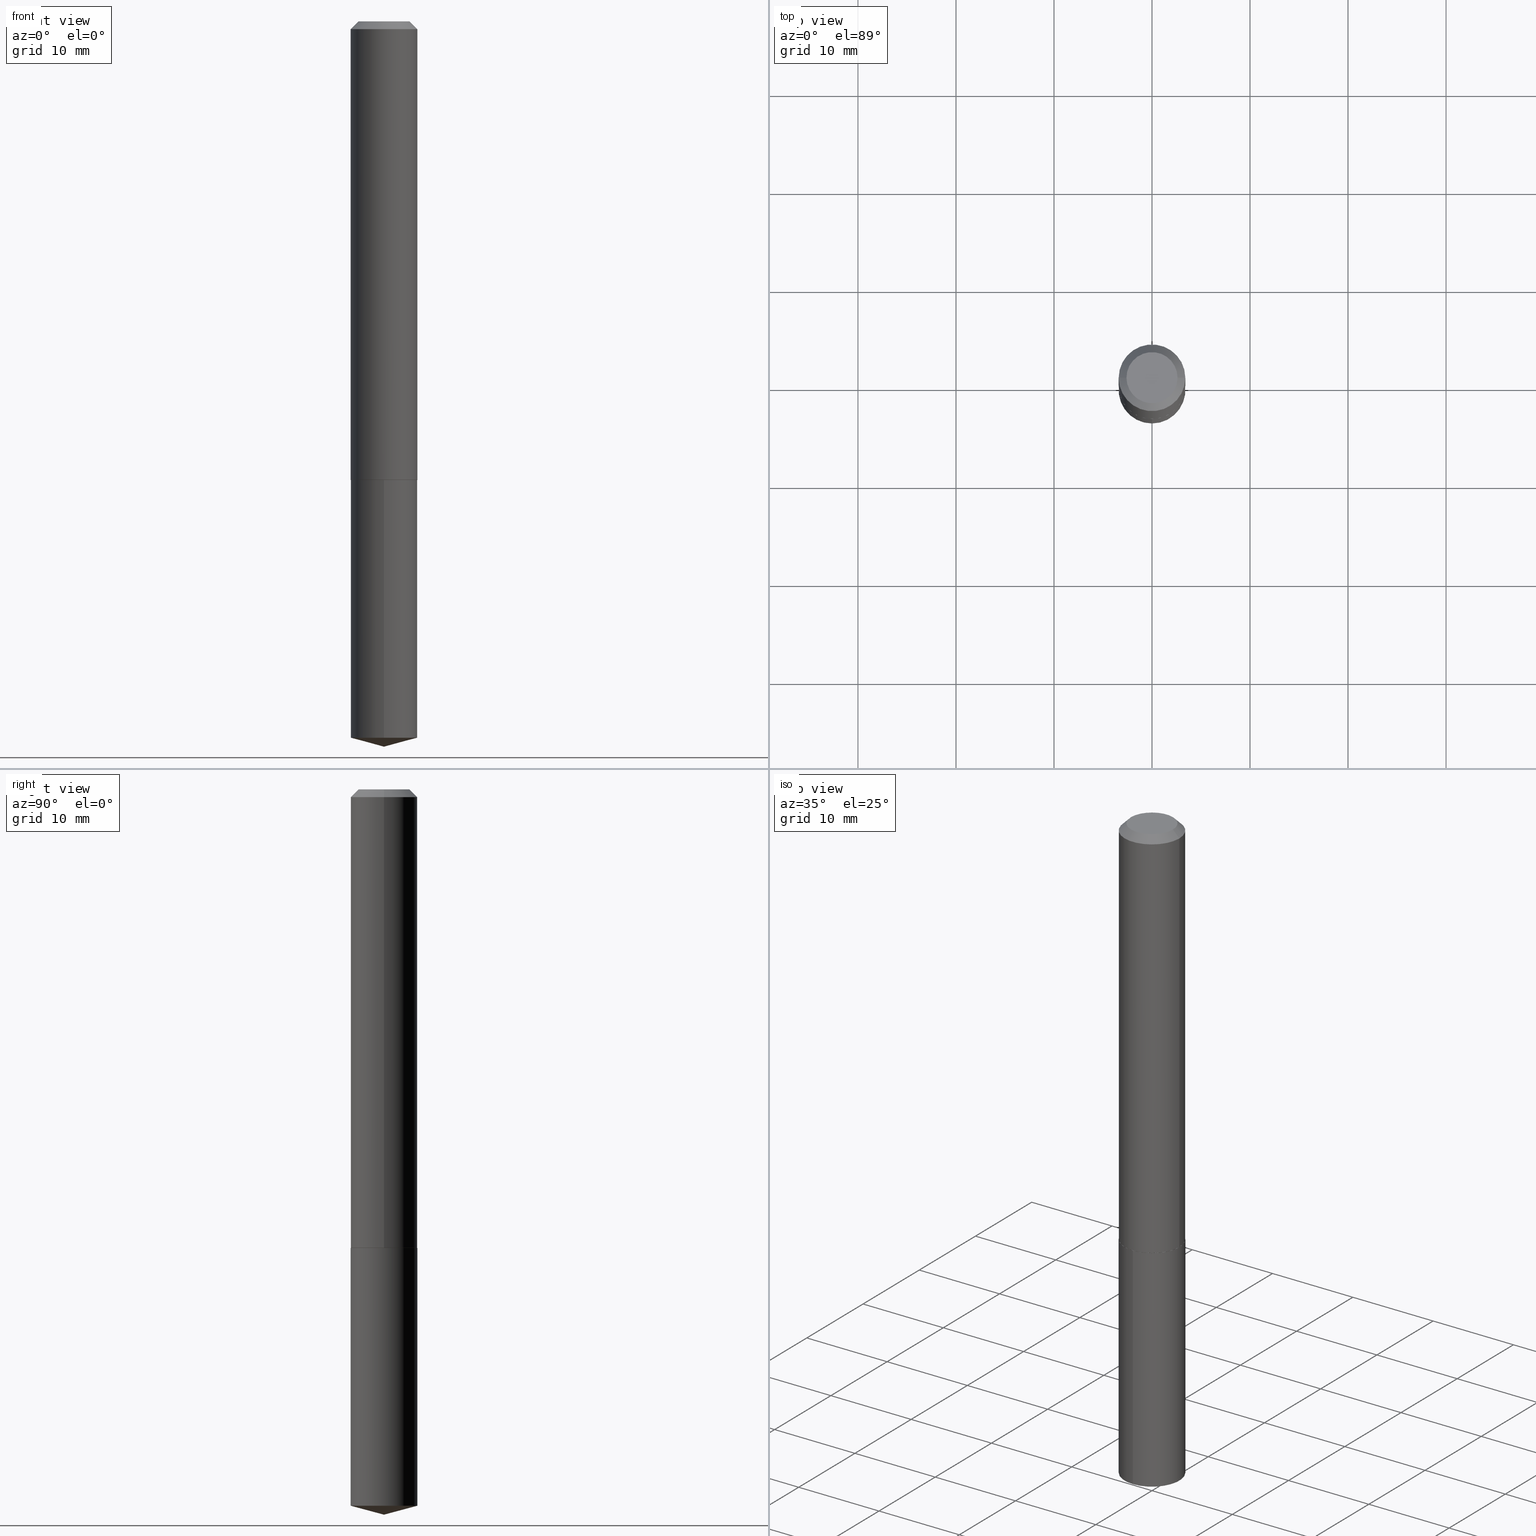
[diagram: canonical four-view strip — front | top / right | iso, engineering-drawing reading convention]
A machine part, canonical four-view strip (front | top / right | iso — engineering-drawing reading convention). The complete STEP part file that produces these views, byte-faithful:
ISO-10303-21;
HEADER;
FILE_DESCRIPTION (( 'STEP AP203' ),
    '1' );
FILE_NAME ('69003.STEP',
    '2024-04-23T14:13:59',
    ( '' ),
    ( '' ),
    'SwSTEP 2.0',
    'SolidWorks 2023',
    '' );
FILE_SCHEMA (( 'CONFIG_CONTROL_DESIGN' ));
ENDSEC;

DATA;
#1 = PRODUCT_DEFINITION ( 'UNKNOWN', '', #275, #266 ) ;
#2 = DIRECTION ( 'NONE',  ( -6.982962677686265133E-15, -1.000000000000000000, 4.081954417130015942E-15 ) ) ;
#3 = FACE_OUTER_BOUND ( 'NONE', #100, .T. ) ;
#4 = PERSON_AND_ORGANIZATION ( #299, #27 ) ;
#5 = VECTOR ( 'NONE', #292, 39.37007874015748143 ) ;
#6 = ORIENTED_EDGE ( 'NONE', *, *, #385, .F. ) ;
#7 = CC_DESIGN_PERSON_AND_ORGANIZATION_ASSIGNMENT ( #200, #46, ( #275 ) ) ;
#8 = CARTESIAN_POINT ( 'NONE',  ( -5.839929314523151101E-48, 8.337871319499049968E-34, 2.388061258337324511E-19 ) ) ;
#9 = VERTEX_POINT ( 'NONE', #143 ) ;
#10 = LENGTH_MEASURE_WITH_UNIT ( LENGTH_MEASURE( 0.02539999999999999897 ), #170 );
#11 = CONICAL_SURFACE ( 'NONE', #314, 146.9311341562547568, 1.308996938995746762 ) ;
#12 = ORIENTED_EDGE ( 'NONE', *, *, #211, .T. ) ;
#13 = EDGE_CURVE ( 'NONE', #368, #15, #123, .T. ) ;
#14 = VERTEX_POINT ( 'NONE', #286 ) ;
#15 = VERTEX_POINT ( 'NONE', #282 ) ;
#16 = CARTESIAN_POINT ( 'NONE',  ( 0.1338500000000002466, -7.365978180557384825E-15, -1.842000000000000526 ) ) ;
#17 = LOCAL_TIME ( 10, 13, 59.00000000000000000, #259 ) ;
#18 = EDGE_CURVE ( 'NONE', #14, #9, #90, .T. ) ;
#19 = CYLINDRICAL_SURFACE ( 'NONE', #214, 0.1338500000000001078 ) ;
#20 = LINE ( 'NONE', #175, #5 ) ;
#21 = FACE_OUTER_BOUND ( 'NONE', #199, .T. ) ;
#22 = VECTOR ( 'NONE', #240, 39.37007874015748854 ) ;
#23 = CARTESIAN_POINT ( 'NONE',  ( 9.510614518149640872E-16, 0.1338499999999899492, -2.877535000593094860 ) ) ;
#24 = PLANE ( 'NONE',  #183 ) ;
#25 = CC_DESIGN_PERSON_AND_ORGANIZATION_ASSIGNMENT ( #348, #192, ( #275 ) ) ;
#26 = PLANE ( 'NONE',  #36 ) ;
#27 = ORGANIZATION ( 'UNSPECIFIED', 'UNSPECIFIED', '' ) ;
#28 = CARTESIAN_POINT ( 'NONE',  ( 7.642090019328603538E-31, -1.091087918388490390E-16, -0.03125000000000021511 ) ) ;
#29 = CARTESIAN_POINT ( 'NONE',  ( -8.915561011178385152E-28, 1.272850360579893958E-13, 36.45667874015747856 ) ) ;
#30 = EDGE_LOOP ( 'NONE', ( #196, #39, #258, #108 ) ) ;
#31 = DIRECTION ( 'NONE',  ( 1.000000000000000000, -6.982962677686265922E-15, 4.876176775795935793E-29 ) ) ;
#32 = PRODUCT ( '69003', '69003', '', ( #284 ) ) ;
#33 = ORIENTED_EDGE ( 'NONE', *, *, #127, .T. ) ;
#34 = PERSON_AND_ORGANIZATION_ROLE ( 'creator' ) ;
#35 = CIRCLE ( 'NONE', #262, 0.1338499999999999968 ) ;
#36 = AXIS2_PLACEMENT_3D ( 'NONE', #190, #213, #360 ) ;
#37 = VERTEX_POINT ( 'NONE', #204 ) ;
#38 = DIRECTION ( 'NONE',  ( 1.000000000000000000, -6.982962677686268288E-15, 0.000000000000000000 ) ) ;
#39 = ORIENTED_EDGE ( 'NONE', *, *, #308, .T. ) ;
#40 = APPROVAL ( #131, 'UNSPECIFIED' ) ;
#41 = DIRECTION ( 'NONE',  ( -2.445468806185136597E-29, 3.491481338843145583E-15, 1.000000000000000000 ) ) ;
#42 = EDGE_LOOP ( 'NONE', ( #174, #285, #161, #12 ) ) ;
#43 = ORIENTED_EDGE ( 'NONE', *, *, #53, .F. ) ;
#44 = VECTOR ( 'NONE', #113, 39.37007874015748143 ) ;
#45 = CONICAL_SURFACE ( 'NONE', #270, 0.1338499999999999968, 0.7853981633974450594 ) ;
#46 = PERSON_AND_ORGANIZATION_ROLE ( 'design_supplier' ) ;
#47 = ORIENTED_EDGE ( 'NONE', *, *, #85, .T. ) ;
#48 = DIRECTION ( 'NONE',  ( -2.445468806185136597E-29, 3.491481338843145583E-15, 1.000000000000000000 ) ) ;
#49 = DATE_AND_TIME ( #55, #331 ) ;
#50 = DIRECTION ( 'NONE',  ( -2.445519446321027074E-29, 3.491408819286292575E-15, 1.000000000000000000 ) ) ;
#51 = CC_DESIGN_APPROVAL ( #40, ( #1 ) ) ;
#52 = CARTESIAN_POINT ( 'NONE',  ( 4.504553540993022477E-29, -6.431308626149075527E-15, -1.842000000000000526 ) ) ;
#53 = EDGE_CURVE ( 'NONE', #366, #76, #341, .T. ) ;
#54 = DIRECTION ( 'NONE',  ( -6.982962677686265133E-15, -1.000000000000000000, 4.081954417130015942E-15 ) ) ;
#55 = CALENDAR_DATE ( 2024, 23, 4 ) ;
#56 = CARTESIAN_POINT ( 'NONE',  ( 7.642090019328603538E-31, -1.091087918388490390E-16, -0.03125000000000021511 ) ) ;
#57 = CARTESIAN_POINT ( 'NONE',  ( 4.504553540993022477E-29, -6.431308626149075527E-15, -1.842000000000000526 ) ) ;
#58 = DIMENSIONAL_EXPONENTS ( 1.000000000000000000, 0.000000000000000000, 0.000000000000000000, 0.000000000000000000, 0.000000000000000000, 0.000000000000000000, 0.000000000000000000 ) ;
#59 = ORIENTED_EDGE ( 'NONE', *, *, #263, .F. ) ;
#60 = FACE_OUTER_BOUND ( 'NONE', #311, .T. ) ;
#61 = PRODUCT_DEFINITION_SHAPE ( 'NONE', 'NONE',  #1 ) ;
#62 = CARTESIAN_POINT ( 'NONE',  ( -8.915561011178385152E-28, 1.272850360579893958E-13, 36.45667874015747856 ) ) ;
#63 = AXIS2_PLACEMENT_3D ( 'NONE', #378, #193, #164 ) ;
#64 = DIRECTION ( 'NONE',  ( -0.7071067811867165487, 7.493145998870964739E-15, 0.7071067811863784858 ) ) ;
#65 = CIRCLE ( 'NONE', #280, 0.1338499999999999968 ) ;
#66 = DIRECTION ( 'NONE',  ( 2.438088387897960049E-29, -3.491481338843145188E-15, -1.000000000000000000 ) ) ;
#67 = EDGE_CURVE ( 'NONE', #105, #368, #381, .T. ) ;
#68 =( CONVERSION_BASED_UNIT ( 'INCH', #10 ) LENGTH_UNIT ( ) NAMED_UNIT ( #58 ) );
#69 = EDGE_LOOP ( 'NONE', ( #232, #349 ) ) ;
#70 = APPROVAL_STATUS ( 'not_yet_approved' ) ;
#71 = AXIS2_PLACEMENT_3D ( 'NONE', #8, #133, #269 ) ;
#72 = ORIENTED_EDGE ( 'NONE', *, *, #146, .T. ) ;
#73 = EDGE_CURVE ( 'NONE', #76, #366, #117, .T. ) ;
#74 = APPLICATION_CONTEXT ( 'configuration controlled 3d designs of mechanical parts and assemblies' ) ;
#75 = DIRECTION ( 'NONE',  ( 1.000000000000000000, 0.000000000000000000, 0.000000000000000000 ) ) ;
#76 = VERTEX_POINT ( 'NONE', #23 ) ;
#77 = CARTESIAN_POINT ( 'NONE',  ( 0.000000000000000000, 0.000000000000000000, 0.000000000000000000 ) ) ;
#78 = EDGE_LOOP ( 'NONE', ( #252, #319, #198, #129 ) ) ;
#79 = EDGE_LOOP ( 'NONE', ( #290, #47, #345 ) ) ;
#80 = LINE ( 'NONE', #234, #382 ) ;
#81 = ADVANCED_FACE ( 'NONE', ( #328 ), #82, .T. ) ;
#82 = CYLINDRICAL_SURFACE ( 'NONE', #301, 0.1338500000000001078 ) ;
#83 = DIRECTION ( 'NONE',  ( 1.000000000000000000, -6.982962677686267499E-15, 4.876182450887182109E-29 ) ) ;
#84 = AXIS2_PLACEMENT_3D ( 'NONE', #327, #148, #83 ) ;
#85 = EDGE_CURVE ( 'NONE', #261, #366, #384, .T. ) ;
#86 = DIRECTION ( 'NONE',  ( -2.445519446321027074E-29, 3.491408819286292575E-15, 1.000000000000000000 ) ) ;
#87 = ADVANCED_BREP_SHAPE_REPRESENTATION ( '69003', ( #247, #119, #233 ), #162 ) ;
#88 = CARTESIAN_POINT ( 'NONE',  ( 4.505776275396114718E-29, -6.433054366818497031E-15, -1.842500000000000249 ) ) ;
#89 = DIRECTION ( 'NONE',  ( -2.445468806185136597E-29, 3.491481338843145583E-15, 1.000000000000000000 ) ) ;
#90 = CIRCLE ( 'NONE', #71, 0.1025999999999999829 ) ;
#91 = VECTOR ( 'NONE', #248, 39.37007874015748143 ) ;
#92 = CARTESIAN_POINT ( 'NONE',  ( 4.505776275396114718E-29, -6.433054366818497031E-15, -1.842500000000000249 ) ) ;
#93 = CC_DESIGN_PERSON_AND_ORGANIZATION_ASSIGNMENT ( #317, #34, ( #1 ) ) ;
#94 = CARTESIAN_POINT ( 'NONE',  ( -0.1338500000000002466, -5.480247174334179676E-15, -1.842000000000000526 ) ) ;
#95 = FACE_OUTER_BOUND ( 'NONE', #78, .T. ) ;
#96 = PRODUCT_RELATED_PRODUCT_CATEGORY ( 'detail', '', ( #32 ) ) ;
#97 = CLOSED_SHELL ( 'NONE', ( #347, #114, #142, #375, #103, #81, #296, #303 ) ) ;
#98 = CARTESIAN_POINT ( 'NONE',  ( 7.141565801474276587E-29, -2.658453745651344458E-15, -1.842500000000000249 ) ) ;
#99 = APPROVAL_ROLE ( '' ) ;
#100 = EDGE_LOOP ( 'NONE', ( #59, #371 ) ) ;
#101 = APPLICATION_PROTOCOL_DEFINITION ( 'international standard', 'config_control_design', 1994, #132 ) ;
#102 = VERTEX_POINT ( 'NONE', #205 ) ;
#103 = ADVANCED_FACE ( 'NONE', ( #323 ), #110, .T. ) ;
#104 = AXIS2_PLACEMENT_3D ( 'NONE', #57, #41, #38 ) ;
#105 = VERTEX_POINT ( 'NONE', #295 ) ;
#106 = ORIENTED_EDGE ( 'NONE', *, *, #243, .T. ) ;
#107 = DATE_TIME_ROLE ( 'creation_date' ) ;
#108 = ORIENTED_EDGE ( 'NONE', *, *, #152, .F. ) ;
#109 = ORIENTED_EDGE ( 'NONE', *, *, #385, .T. ) ;
#110 = CONICAL_SURFACE ( 'NONE', #178, 0.1338500000000002466, 0.7853981633976873100 ) ;
#111 = VECTOR ( 'NONE', #156, 39.37007874015748143 ) ;
#112 = DIRECTION ( 'NONE',  ( 1.000000000000000000, -6.982962677686266711E-15, 4.876176775795935793E-29 ) ) ;
#113 = DIRECTION ( 'NONE',  ( 0.7071067811867165487, -2.468850131084027659E-15, 0.7071067811863784858 ) ) ;
#114 = ADVANCED_FACE ( 'NONE', ( #21 ), #19, .T. ) ;
#115 = COORDINATED_UNIVERSAL_TIME_OFFSET ( 5, 0, .BEHIND. ) ;
#116 = CARTESIAN_POINT ( 'NONE',  ( 0.1338500000000001078, -9.346695544083075234E-16, 6.526762614402865288E-30 ) ) ;
#117 = CIRCLE ( 'NONE', #293, 0.1338499999999999968 ) ;
#118 = APPROVAL_STATUS ( 'not_yet_approved' ) ;
#119 = MANIFOLD_SOLID_BREP ( 'Body-Move/Copy2[2]', #97 ) ;
#120 = DIRECTION ( 'NONE',  ( -6.982962677686265133E-15, -1.000000000000000000, 4.081954417130015942E-15 ) ) ;
#121 = DIRECTION ( 'NONE',  ( -2.445519446321027074E-29, 3.491408819286292575E-15, 1.000000000000000000 ) ) ;
#122 = CARTESIAN_POINT ( 'NONE',  ( 0.1333500000000003571, -7.364232439887962533E-15, -1.842500000000000027 ) ) ;
#123 = CIRCLE ( 'NONE', #63, 0.1338499999999999968 ) ;
#124 = VECTOR ( 'NONE', #242, 39.37007874015748143 ) ;
#125 = DIRECTION ( 'NONE',  ( -1.000000000000000000, 6.982962677686266711E-15, 0.000000000000000000 ) ) ;
#126 = DIRECTION ( 'NONE',  ( -1.000000000000000000, 6.982962677686266711E-15, 0.000000000000000000 ) ) ;
#127 = EDGE_CURVE ( 'NONE', #366, #254, #80, .T. ) ;
#128 = PLANE ( 'NONE',  #145 ) ;
#129 = ORIENTED_EDGE ( 'NONE', *, *, #176, .F. ) ;
#130 = CIRCLE ( 'NONE', #372, 0.1338500000000002466 ) ;
#131 = APPROVAL_STATUS ( 'not_yet_approved' ) ;
#132 = APPLICATION_CONTEXT ( 'configuration controlled 3d designs of mechanical parts and assemblies' ) ;
#133 = DIRECTION ( 'NONE',  ( -2.445468806185136597E-29, 3.491481338843145583E-15, 1.000000000000000000 ) ) ;
#134 = EDGE_CURVE ( 'NONE', #9, #14, #388, .T. ) ;
#135 = ORIENTED_EDGE ( 'NONE', *, *, #194, .T. ) ;
#136 = AXIS2_PLACEMENT_3D ( 'NONE', #365, #332, #2 ) ;
#137 =( NAMED_UNIT ( * ) PLANE_ANGLE_UNIT ( ) SI_UNIT ( $, .RADIAN. ) );
#138 = CC_DESIGN_SECURITY_CLASSIFICATION ( #244, ( #275 ) ) ;
#139 = ORIENTED_EDGE ( 'NONE', *, *, #157, .T. ) ;
#140 = COORDINATED_UNIVERSAL_TIME_OFFSET ( 5, 0, .BEHIND. ) ;
#141 = EDGE_LOOP ( 'NONE', ( #135, #321 ) ) ;
#142 = ADVANCED_FACE ( 'NONE', ( #271 ), #201, .T. ) ;
#143 = CARTESIAN_POINT ( 'NONE',  ( -0.1025999999999999829, 7.710063666500343655E-16, 2.388061258285314772E-19 ) ) ;
#144 = DIRECTION ( 'NONE',  ( -2.445468806185136597E-29, 3.491481338843145583E-15, 1.000000000000000000 ) ) ;
#145 = AXIS2_PLACEMENT_3D ( 'NONE', #98, #220, #31 ) ;
#146 = EDGE_CURVE ( 'NONE', #261, #76, #208, .T. ) ;
#147 = DIRECTION ( 'NONE',  ( -2.445519446321027074E-29, 3.491408819286292575E-15, 1.000000000000000000 ) ) ;
#148 = DIRECTION ( 'NONE',  ( -2.445468806185136597E-29, 3.491481338843145583E-15, 1.000000000000000000 ) ) ;
#149 = DIRECTION ( 'NONE',  ( -2.445468806185136597E-29, 3.491481338843145583E-15, 1.000000000000000000 ) ) ;
#150 = CLOSED_SHELL ( 'NONE', ( #255, #325, #334, #249, #283 ) ) ;
#151 = DIRECTION ( 'NONE',  ( -2.445468806185136877E-29, 3.491481338843145188E-15, 1.000000000000000000 ) ) ;
#152 = EDGE_CURVE ( 'NONE', #260, #105, #380, .T. ) ;
#153 = LINE ( 'NONE', #272, #91 ) ;
#154 = CYLINDRICAL_SURFACE ( 'NONE', #288, 0.1338499999999999968 ) ;
#155 = AXIS2_PLACEMENT_3D ( 'NONE', #181, #144, #329 ) ;
#156 = DIRECTION ( 'NONE',  ( 0.7071067811865452413, -7.319954787623248157E-15, -0.7071067811865497932 ) ) ;
#157 = EDGE_CURVE ( 'NONE', #105, #102, #130, .T. ) ;
#158 = DIRECTION ( 'NONE',  ( -6.982962677686265922E-15, -1.000000000000000000, 3.510303681827646350E-15 ) ) ;
#159 = UNCERTAINTY_MEASURE_WITH_UNIT (LENGTH_MEASURE( 1.000000000000000082E-05 ), #68, 'distance_accuracy_value', 'NONE');
#160 = LINE ( 'NONE', #310, #111 ) ;
#161 = ORIENTED_EDGE ( 'NONE', *, *, #176, .T. ) ;
#162 =( GEOMETRIC_REPRESENTATION_CONTEXT ( 3 ) GLOBAL_UNCERTAINTY_ASSIGNED_CONTEXT ( ( #159 ) ) GLOBAL_UNIT_ASSIGNED_CONTEXT ( ( #68, #137, #168 ) ) REPRESENTATION_CONTEXT ( 'NONE', 'WORKASPACE' ) );
#163 = PERSON_AND_ORGANIZATION ( #299, #27 ) ;
#164 = DIRECTION ( 'NONE',  ( 1.000000000000000000, -6.982962677686266711E-15, 0.000000000000000000 ) ) ;
#165 = EDGE_CURVE ( 'NONE', #37, #254, #209, .T. ) ;
#166 = COORDINATED_UNIVERSAL_TIME_OFFSET ( 5, 0, .BEHIND. ) ;
#167 = ORIENTED_EDGE ( 'NONE', *, *, #165, .F. ) ;
#168 =( NAMED_UNIT ( * ) SI_UNIT ( $, .STERADIAN. ) SOLID_ANGLE_UNIT ( ) );
#169 = ORIENTED_EDGE ( 'NONE', *, *, #13, .F. ) ;
#170 =( LENGTH_UNIT ( ) NAMED_UNIT ( * ) SI_UNIT ( $, .METRE. ) );
#171 = ORIENTED_EDGE ( 'NONE', *, *, #152, .T. ) ;
#172 = CC_DESIGN_PERSON_AND_ORGANIZATION_ASSIGNMENT ( #339, #251, ( #32 ) ) ;
#173 = SECURITY_CLASSIFICATION_LEVEL ( 'unclassified' ) ;
#174 = ORIENTED_EDGE ( 'NONE', *, *, #229, .F. ) ;
#175 = CARTESIAN_POINT ( 'NONE',  ( -0.1338499999999999968, 8.255607625694576339E-16, -0.03125000000000021511 ) ) ;
#176 = EDGE_CURVE ( 'NONE', #9, #15, #20, .T. ) ;
#177 = DIRECTION ( 'NONE',  ( -2.445468806185136597E-29, 3.491481338843145583E-15, 1.000000000000000000 ) ) ;
#178 = AXIS2_PLACEMENT_3D ( 'NONE', #359, #177, #322 ) ;
#179 = APPROVAL_PERSON_ORGANIZATION ( #369, #268, #315 ) ;
#180 = DIRECTION ( 'NONE',  ( 1.000000000000000000, -6.982962677686268288E-15, 0.000000000000000000 ) ) ;
#181 = CARTESIAN_POINT ( 'NONE',  ( 4.505776275396114157E-29, -6.433054366818496242E-15, -1.842500000000000027 ) ) ;
#182 = DIRECTION ( 'NONE',  ( -2.445468806185136597E-29, 3.491481338843145583E-15, 1.000000000000000000 ) ) ;
#183 = AXIS2_PLACEMENT_3D ( 'NONE', #277, #66, #307 ) ;
#184 = LINE ( 'NONE', #361, #124 ) ;
#185 = CARTESIAN_POINT ( 'NONE',  ( 4.505776275396114157E-29, -6.433054366818496242E-15, -1.842500000000000027 ) ) ;
#186 = CARTESIAN_POINT ( 'NONE',  ( 7.642090019328603538E-31, -1.091087918388490390E-16, -0.03125000000000021511 ) ) ;
#187 = CC_DESIGN_APPROVAL ( #273, ( #244 ) ) ;
#188 = DIRECTION ( 'NONE',  ( -6.982962677686265133E-15, -1.000000000000000000, 4.081954417130015942E-15 ) ) ;
#189 = ORIENTED_EDGE ( 'NONE', *, *, #238, .T. ) ;
#190 = CARTESIAN_POINT ( 'NONE',  ( 4.505776275396114718E-29, -6.433054366818497031E-15, -1.842500000000000249 ) ) ;
#191 = ORIENTED_EDGE ( 'NONE', *, *, #211, .F. ) ;
#192 = PERSON_AND_ORGANIZATION_ROLE ( 'creator' ) ;
#193 = DIRECTION ( 'NONE',  ( -2.445468806185136597E-29, 3.491481338843145583E-15, 1.000000000000000000 ) ) ;
#194 = EDGE_CURVE ( 'NONE', #254, #37, #35, .T. ) ;
#195 = DATE_AND_TIME ( #253, #226 ) ;
#196 = ORIENTED_EDGE ( 'NONE', *, *, #263, .T. ) ;
#197 = APPROVAL_DATE_TIME ( #195, #40 ) ;
#198 = ORIENTED_EDGE ( 'NONE', *, *, #13, .T. ) ;
#199 = EDGE_LOOP ( 'NONE', ( #139, #189, #169, #318 ) ) ;
#200 = PERSON_AND_ORGANIZATION ( #299, #27 ) ;
#201 = CONICAL_SURFACE ( 'NONE', #257, 0.1338500000000002466, 0.7853981633976873100 ) ;
#202 = ORIENTED_EDGE ( 'NONE', *, *, #73, .T. ) ;
#203 = APPROVAL_DATE_TIME ( #49, #273 ) ;
#204 = CARTESIAN_POINT ( 'NONE',  ( 9.510614518149640872E-16, 0.1338499999999935297, -1.842500000000000915 ) ) ;
#205 = CARTESIAN_POINT ( 'NONE',  ( -0.1338500000000002466, -5.480247174334179676E-15, -1.842000000000000526 ) ) ;
#206 = EDGE_CURVE ( 'NONE', #224, #260, #294, .T. ) ;
#207 = CIRCLE ( 'NONE', #104, 0.1338500000000002466 ) ;
#208 = LINE ( 'NONE', #236, #219 ) ;
#209 = CIRCLE ( 'NONE', #350, 0.1338499999999999968 ) ;
#210 = DIRECTION ( 'NONE',  ( 1.000000000000000000, -6.982962677686268288E-15, 0.000000000000000000 ) ) ;
#211 = EDGE_CURVE ( 'NONE', #15, #368, #65, .T. ) ;
#212 = CARTESIAN_POINT ( 'NONE',  ( 0.000000000000000000, 0.000000000000000000, 0.000000000000000000 ) ) ;
#213 = DIRECTION ( 'NONE',  ( 2.445519446321027074E-29, -3.491408819286292575E-15, -1.000000000000000000 ) ) ;
#214 = AXIS2_PLACEMENT_3D ( 'NONE', #264, #48, #355 ) ;
#215 = VECTOR ( 'NONE', #64, 39.37007874015748143 ) ;
#216 = CARTESIAN_POINT ( 'NONE',  ( -0.1333500000000003571, -5.482896401508290089E-15, -1.842500000000000027 ) ) ;
#217 = FACE_OUTER_BOUND ( 'NONE', #79, .T. ) ;
#218 = FACE_OUTER_BOUND ( 'NONE', #69, .T. ) ;
#219 = VECTOR ( 'NONE', #358, 39.37007874015748143 ) ;
#220 = DIRECTION ( 'NONE',  ( -2.438088387897960049E-29, 3.491481338843145188E-15, 1.000000000000000000 ) ) ;
#221 = DATE_AND_TIME ( #250, #305 ) ;
#222 = ORIENTED_EDGE ( 'NONE', *, *, #127, .F. ) ;
#223 = PERSON_AND_ORGANIZATION ( #299, #27 ) ;
#224 = VERTEX_POINT ( 'NONE', #216 ) ;
#225 = VECTOR ( 'NONE', #151, 39.37007874015748143 ) ;
#226 = LOCAL_TIME ( 10, 13, 59.00000000000000000, #140 ) ;
#227 = CALENDAR_DATE ( 2024, 23, 4 ) ;
#228 = ORIENTED_EDGE ( 'NONE', *, *, #53, .T. ) ;
#229 = EDGE_CURVE ( 'NONE', #14, #368, #160, .T. ) ;
#230 = EDGE_LOOP ( 'NONE', ( #309, #279, #171, #6 ) ) ;
#231 = APPROVAL_DATE_TIME ( #344, #268 ) ;
#232 = ORIENTED_EDGE ( 'NONE', *, *, #134, .T. ) ;
#233 = AXIS2_PLACEMENT_3D ( 'NONE', #77, #373, #75 ) ;
#234 = CARTESIAN_POINT ( 'NONE',  ( -9.346695544082615722E-16, -0.1338500000000064361, -1.842499999999999805 ) ) ;
#235 = CARTESIAN_POINT ( 'NONE',  ( 7.124589746010923989E-29, -1.017213768867568958E-14, -2.913400000000000212 ) ) ;
#236 = CARTESIAN_POINT ( 'NONE',  ( 7.124777991251466516E-29, -1.017187045410868744E-14, -2.913400000000000212 ) ) ;
#237 = DIRECTION ( 'NONE',  ( -2.445468806185136597E-29, 3.491481338843145583E-15, 1.000000000000000000 ) ) ;
#238 = EDGE_CURVE ( 'NONE', #102, #15, #184, .T. ) ;
#239 = SHAPE_DEFINITION_REPRESENTATION ( #61, #87 ) ;
#240 = DIRECTION ( 'NONE',  ( -6.745023994389835189E-15, -0.9659258262890670910, 0.2588190451025245142 ) ) ;
#241 = CYLINDRICAL_SURFACE ( 'NONE', #136, 0.1338499999999999968 ) ;
#242 = DIRECTION ( 'NONE',  ( -2.445468806185136877E-29, 3.491481338843145188E-15, 1.000000000000000000 ) ) ;
#243 = EDGE_CURVE ( 'NONE', #76, #37, #153, .T. ) ;
#244 = SECURITY_CLASSIFICATION ( '', '', #173 ) ;
#245 = FACE_OUTER_BOUND ( 'NONE', #42, .T. ) ;
#246 = CARTESIAN_POINT ( 'NONE',  ( -9.346695544082361315E-16, -0.1338500000000100165, -2.877535000593093972 ) ) ;
#247 = MANIFOLD_SOLID_BREP ( 'Body-Move/Copy2[1]', #150 ) ;
#248 = DIRECTION ( 'NONE',  ( -2.445519446321027074E-29, 3.491408819286292575E-15, 1.000000000000000000 ) ) ;
#249 = ADVANCED_FACE ( 'NONE', ( #387 ), #154, .T. ) ;
#250 = CALENDAR_DATE ( 2024, 23, 4 ) ;
#251 = PERSON_AND_ORGANIZATION_ROLE ( 'design_owner' ) ;
#252 = ORIENTED_EDGE ( 'NONE', *, *, #18, .F. ) ;
#253 = CALENDAR_DATE ( 2024, 23, 4 ) ;
#254 = VERTEX_POINT ( 'NONE', #302 ) ;
#255 = ADVANCED_FACE ( 'NONE', ( #60 ), #241, .T. ) ;
#256 = APPROVAL_PERSON_ORGANIZATION ( #223, #40, #99 ) ;
#257 = AXIS2_PLACEMENT_3D ( 'NONE', #265, #237, #210 ) ;
#258 = ORIENTED_EDGE ( 'NONE', *, *, #157, .F. ) ;
#259 = COORDINATED_UNIVERSAL_TIME_OFFSET ( 5, 0, .BEHIND. ) ;
#260 = VERTEX_POINT ( 'NONE', #122 ) ;
#261 = VERTEX_POINT ( 'NONE', #306 ) ;
#262 = AXIS2_PLACEMENT_3D ( 'NONE', #88, #86, #54 ) ;
#263 = EDGE_CURVE ( 'NONE', #260, #224, #324, .T. ) ;
#264 = CARTESIAN_POINT ( 'NONE',  ( 0.000000000000000000, 0.000000000000000000, 0.000000000000000000 ) ) ;
#265 = CARTESIAN_POINT ( 'NONE',  ( 4.504553540993022477E-29, -6.431308626149075527E-15, -1.842000000000000526 ) ) ;
#266 = DESIGN_CONTEXT ( 'detailed design', #74, 'design' ) ;
#267 = CARTESIAN_POINT ( 'NONE',  ( 4.505776275396114718E-29, -6.433054366818497031E-15, -1.842500000000000249 ) ) ;
#268 = APPROVAL ( #70, 'UNSPECIFIED' ) ;
#269 = DIRECTION ( 'NONE',  ( 1.000000000000000000, -6.982962677686267499E-15, 4.876182450887182109E-29 ) ) ;
#270 = AXIS2_PLACEMENT_3D ( 'NONE', #28, #276, #126 ) ;
#271 = FACE_OUTER_BOUND ( 'NONE', #30, .T. ) ;
#272 = CARTESIAN_POINT ( 'NONE',  ( 9.510614518149390408E-16, 0.1338499999999935575, -1.842500000000000915 ) ) ;
#273 = APPROVAL ( #118, 'UNSPECIFIED' ) ;
#274 = DIRECTION ( 'NONE',  ( -2.445519446321027074E-29, 3.491408819286292575E-15, 1.000000000000000000 ) ) ;
#275 = PRODUCT_DEFINITION_FORMATION_WITH_SPECIFIED_SOURCE ( 'ANY', '', #32, .NOT_KNOWN. ) ;
#276 = DIRECTION ( 'NONE',  ( 2.445468806185136597E-29, -3.491481338843145583E-15, -1.000000000000000000 ) ) ;
#277 = CARTESIAN_POINT ( 'NONE',  ( -2.919964657261575550E-48, 4.168935659749524984E-34, 1.194030629168662255E-19 ) ) ;
#278 = DIRECTION ( 'NONE',  ( 1.000000000000000000, -6.982962677686266711E-15, 0.000000000000000000 ) ) ;
#279 = ORIENTED_EDGE ( 'NONE', *, *, #206, .T. ) ;
#280 = AXIS2_PLACEMENT_3D ( 'NONE', #56, #182, #278 ) ;
#281 = COORDINATED_UNIVERSAL_TIME_OFFSET ( 5, 0, .BEHIND. ) ;
#282 = CARTESIAN_POINT ( 'NONE',  ( -0.1338499999999999968, -2.319147257179065674E-15, -0.03125000000000021511 ) ) ;
#283 = ADVANCED_FACE ( 'NONE', ( #304 ), #26, .F. ) ;
#284 = MECHANICAL_CONTEXT ( 'NONE', #132, 'mechanical' ) ;
#285 = ORIENTED_EDGE ( 'NONE', *, *, #134, .F. ) ;
#286 = CARTESIAN_POINT ( 'NONE',  ( 0.1025999999999999829, -8.656367717059636643E-16, 2.388061258392638663E-19 ) ) ;
#287 = AXIS2_PLACEMENT_3D ( 'NONE', #353, #386, #298 ) ;
#288 = AXIS2_PLACEMENT_3D ( 'NONE', #92, #121, #188 ) ;
#289 = APPLICATION_PROTOCOL_DEFINITION ( 'international standard', 'config_control_design', 1994, #74 ) ;
#290 = ORIENTED_EDGE ( 'NONE', *, *, #146, .F. ) ;
#291 = ORIENTED_EDGE ( 'NONE', *, *, #243, .F. ) ;
#292 = DIRECTION ( 'NONE',  ( -0.7071067811865452413, 2.468850131082233000E-15, -0.7071067811865497932 ) ) ;
#293 = AXIS2_PLACEMENT_3D ( 'NONE', #351, #50, #379 ) ;
#294 = CIRCLE ( 'NONE', #155, 0.1333500000000003571 ) ;
#295 = CARTESIAN_POINT ( 'NONE',  ( 0.1338500000000002466, -7.365978180557384825E-15, -1.842000000000000526 ) ) ;
#296 = ADVANCED_FACE ( 'NONE', ( #245 ), #357, .T. ) ;
#297 = DIRECTION ( 'NONE',  ( -2.445519446321027074E-29, 3.491408819286292575E-15, 1.000000000000000000 ) ) ;
#298 = DIRECTION ( 'NONE',  ( -6.982962677686265133E-15, -1.000000000000000000, 4.081954417130015942E-15 ) ) ;
#299 = PERSON ( 'UNSPECIFIED', 'UNSPECIFIED', 'UNSPECIFIED', ('UNSPECIFIED'), ('UNSPECIFIED'), ('UNSPECIFIED') ) ;
#300 = DIRECTION ( 'NONE',  ( -2.445468806185136597E-29, 3.491481338843145583E-15, 1.000000000000000000 ) ) ;
#301 = AXIS2_PLACEMENT_3D ( 'NONE', #212, #300, #112 ) ;
#302 = CARTESIAN_POINT ( 'NONE',  ( -9.346695544082615722E-16, -0.1338500000000064361, -1.842499999999999805 ) ) ;
#303 = ADVANCED_FACE ( 'NONE', ( #218 ), #24, .F. ) ;
#304 = FACE_OUTER_BOUND ( 'NONE', #141, .T. ) ;
#305 = LOCAL_TIME ( 10, 13, 59.00000000000000000, #281 ) ;
#306 = CARTESIAN_POINT ( 'NONE',  ( 7.124776354911680552E-29, -1.017187045410868586E-14, -2.913400000000000212 ) ) ;
#307 = DIRECTION ( 'NONE',  ( -1.000000000000000000, 6.982962677686265922E-15, -4.876176775795935793E-29 ) ) ;
#308 = EDGE_CURVE ( 'NONE', #224, #102, #335, .T. ) ;
#309 = ORIENTED_EDGE ( 'NONE', *, *, #308, .F. ) ;
#310 = CARTESIAN_POINT ( 'NONE',  ( 0.1338499999999999968, -1.027386448840568494E-15, -0.03125000000000021511 ) ) ;
#311 = EDGE_LOOP ( 'NONE', ( #228, #106, #340, #222 ) ) ;
#312 = PERSON_AND_ORGANIZATION_ROLE ( 'classification_officer' ) ;
#313 = EDGE_LOOP ( 'NONE', ( #346, #109, #338, #191 ) ) ;
#314 = AXIS2_PLACEMENT_3D ( 'NONE', #62, #274, #389 ) ;
#315 = APPROVAL_ROLE ( '' ) ;
#316 = EDGE_LOOP ( 'NONE', ( #291, #202, #33, #167 ) ) ;
#317 = PERSON_AND_ORGANIZATION ( #299, #27 ) ;
#318 = ORIENTED_EDGE ( 'NONE', *, *, #67, .F. ) ;
#319 = ORIENTED_EDGE ( 'NONE', *, *, #229, .T. ) ;
#320 = CALENDAR_DATE ( 2024, 23, 4 ) ;
#321 = ORIENTED_EDGE ( 'NONE', *, *, #165, .T. ) ;
#322 = DIRECTION ( 'NONE',  ( 1.000000000000000000, -6.982962677686268288E-15, 0.000000000000000000 ) ) ;
#323 = FACE_OUTER_BOUND ( 'NONE', #230, .T. ) ;
#324 = CIRCLE ( 'NONE', #343, 0.1333500000000003571 ) ;
#325 = ADVANCED_FACE ( 'NONE', ( #330 ), #11, .T. ) ;
#326 = LOCAL_TIME ( 10, 13, 59.00000000000000000, #166 ) ;
#327 = CARTESIAN_POINT ( 'NONE',  ( -5.839929314523151101E-48, 8.337871319499049968E-34, 2.388061258337324511E-19 ) ) ;
#328 = FACE_OUTER_BOUND ( 'NONE', #313, .T. ) ;
#329 = DIRECTION ( 'NONE',  ( 1.000000000000000000, -6.982962677686265922E-15, 0.000000000000000000 ) ) ;
#330 = FACE_OUTER_BOUND ( 'NONE', #377, .T. ) ;
#331 = LOCAL_TIME ( 10, 13, 59.00000000000000000, #115 ) ;
#332 = DIRECTION ( 'NONE',  ( -2.445519446321027074E-29, 3.491408819286292575E-15, 1.000000000000000000 ) ) ;
#333 = DIRECTION ( 'NONE',  ( -2.445519446321027074E-29, 3.491408819286292575E-15, 1.000000000000000000 ) ) ;
#334 = ADVANCED_FACE ( 'NONE', ( #217 ), #383, .T. ) ;
#335 = LINE ( 'NONE', #94, #215 ) ;
#336 = DIRECTION ( 'NONE',  ( 1.000000000000000000, -6.982962677686265922E-15, 0.000000000000000000 ) ) ;
#337 = DATE_TIME_ROLE ( 'classification_date' ) ;
#338 = ORIENTED_EDGE ( 'NONE', *, *, #67, .T. ) ;
#339 = PERSON_AND_ORGANIZATION ( #299, #27 ) ;
#340 = ORIENTED_EDGE ( 'NONE', *, *, #194, .F. ) ;
#341 = CIRCLE ( 'NONE', #287, 0.1338499999999999968 ) ;
#342 = CC_DESIGN_DATE_AND_TIME_ASSIGNMENT ( #376, #107, ( #1 ) ) ;
#343 = AXIS2_PLACEMENT_3D ( 'NONE', #185, #89, #336 ) ;
#344 = DATE_AND_TIME ( #227, #326 ) ;
#345 = ORIENTED_EDGE ( 'NONE', *, *, #73, .F. ) ;
#346 = ORIENTED_EDGE ( 'NONE', *, *, #238, .F. ) ;
#347 = ADVANCED_FACE ( 'NONE', ( #95 ), #45, .T. ) ;
#348 = PERSON_AND_ORGANIZATION ( #299, #27 ) ;
#349 = ORIENTED_EDGE ( 'NONE', *, *, #18, .T. ) ;
#350 = AXIS2_PLACEMENT_3D ( 'NONE', #267, #297, #120 ) ;
#351 = CARTESIAN_POINT ( 'NONE',  ( 7.036974496969421564E-29, -1.004678469615921796E-14, -2.877535000593094416 ) ) ;
#352 = APPROVAL_ROLE ( '' ) ;
#353 = CARTESIAN_POINT ( 'NONE',  ( 7.036974496969421564E-29, -1.004678469615921796E-14, -2.877535000593094416 ) ) ;
#354 = CC_DESIGN_PERSON_AND_ORGANIZATION_ASSIGNMENT ( #4, #312, ( #244 ) ) ;
#355 = DIRECTION ( 'NONE',  ( 1.000000000000000000, -6.982962677686266711E-15, 4.876176775795935793E-29 ) ) ;
#356 = APPROVAL_PERSON_ORGANIZATION ( #163, #273, #352 ) ;
#357 = CONICAL_SURFACE ( 'NONE', #362, 0.1338499999999999968, 0.7853981633974450594 ) ;
#358 = DIRECTION ( 'NONE',  ( 6.863315791527690315E-15, 0.9659258262890690894, 0.2588190451025177974 ) ) ;
#359 = CARTESIAN_POINT ( 'NONE',  ( 4.504553540993022477E-29, -6.431308626149075527E-15, -1.842000000000000526 ) ) ;
#360 = DIRECTION ( 'NONE',  ( 6.982962677686265922E-15, 1.000000000000000000, -3.491408819286292575E-15 ) ) ;
#361 = CARTESIAN_POINT ( 'NONE',  ( -0.1338500000000001078, 9.510614518148948646E-16, -6.583994618306197928E-30 ) ) ;
#362 = AXIS2_PLACEMENT_3D ( 'NONE', #186, #363, #125 ) ;
#363 = DIRECTION ( 'NONE',  ( 2.445468806185136597E-29, -3.491481338843145583E-15, -1.000000000000000000 ) ) ;
#364 = CARTESIAN_POINT ( 'NONE',  ( 0.1338499999999999968, -1.043778346247155835E-15, -0.03125000000000021511 ) ) ;
#365 = CARTESIAN_POINT ( 'NONE',  ( 4.505776275396114718E-29, -6.433054366818497031E-15, -1.842500000000000249 ) ) ;
#366 = VERTEX_POINT ( 'NONE', #246 ) ;
#367 = CC_DESIGN_DATE_AND_TIME_ASSIGNMENT ( #221, #337, ( #244 ) ) ;
#368 = VERTEX_POINT ( 'NONE', #364 ) ;
#369 = PERSON_AND_ORGANIZATION ( #299, #27 ) ;
#370 = AXIS2_PLACEMENT_3D ( 'NONE', #29, #333, #158 ) ;
#371 = ORIENTED_EDGE ( 'NONE', *, *, #206, .F. ) ;
#372 = AXIS2_PLACEMENT_3D ( 'NONE', #52, #149, #180 ) ;
#373 = DIRECTION ( 'NONE',  ( 0.000000000000000000, 0.000000000000000000, 1.000000000000000000 ) ) ;
#374 = ORIENTED_EDGE ( 'NONE', *, *, #85, .F. ) ;
#375 = ADVANCED_FACE ( 'NONE', ( #3 ), #128, .F. ) ;
#376 = DATE_AND_TIME ( #320, #17 ) ;
#377 = EDGE_LOOP ( 'NONE', ( #374, #72, #43 ) ) ;
#378 = CARTESIAN_POINT ( 'NONE',  ( 7.642090019328603538E-31, -1.091087918388490390E-16, -0.03125000000000021511 ) ) ;
#379 = DIRECTION ( 'NONE',  ( -6.982962677686265133E-15, -1.000000000000000000, 4.081954417130015942E-15 ) ) ;
#380 = LINE ( 'NONE', #16, #44 ) ;
#381 = LINE ( 'NONE', #116, #225 ) ;
#382 = VECTOR ( 'NONE', #147, 39.37007874015748143 ) ;
#383 = CONICAL_SURFACE ( 'NONE', #370, 146.9311341562547568, 1.308996938995746762 ) ;
#384 = LINE ( 'NONE', #235, #22 ) ;
#385 = EDGE_CURVE ( 'NONE', #102, #105, #207, .T. ) ;
#386 = DIRECTION ( 'NONE',  ( -2.445519446321027074E-29, 3.491408819286292575E-15, 1.000000000000000000 ) ) ;
#387 = FACE_OUTER_BOUND ( 'NONE', #316, .T. ) ;
#388 = CIRCLE ( 'NONE', #84, 0.1025999999999999829 ) ;
#389 = DIRECTION ( 'NONE',  ( -6.982962677686265922E-15, -1.000000000000000000, 3.510303681827646350E-15 ) ) ;
#390 = CC_DESIGN_APPROVAL ( #268, ( #275 ) ) ;
ENDSEC;
END-ISO-10303-21;
